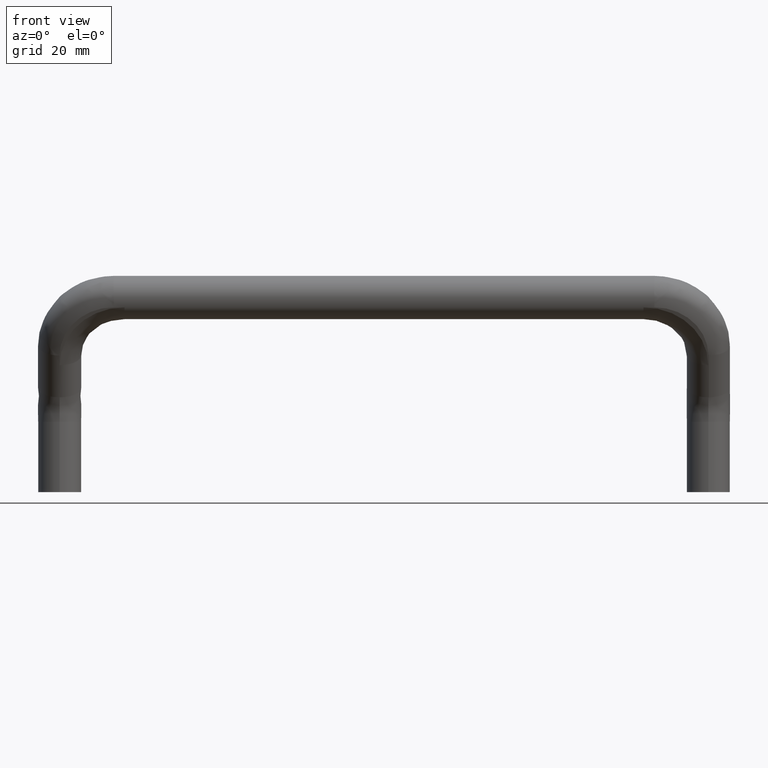
[diagram: clean part render]
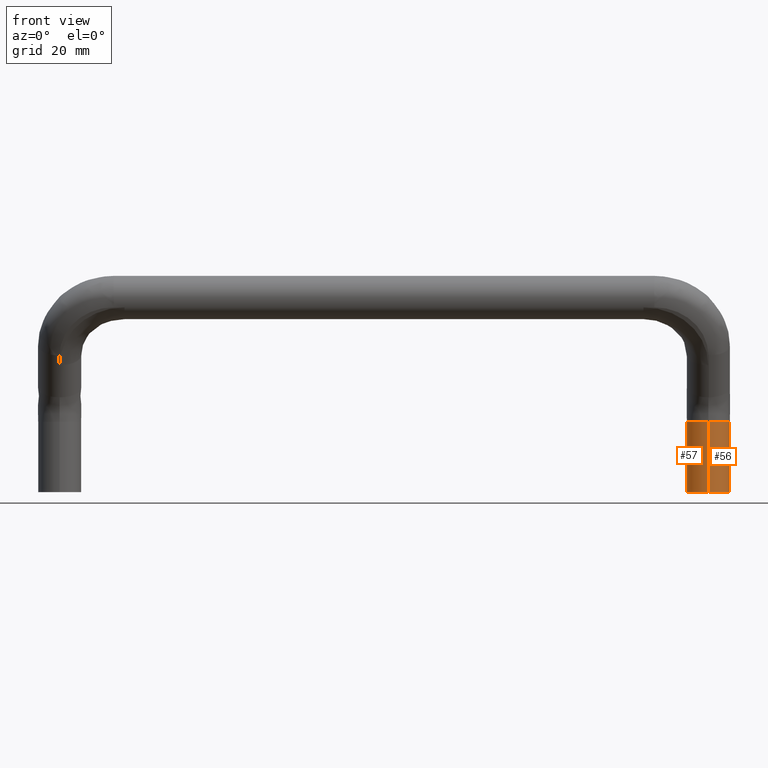
[diagram: same view with one multi-face feature highlighted, each face labeled with its STEP entity id]
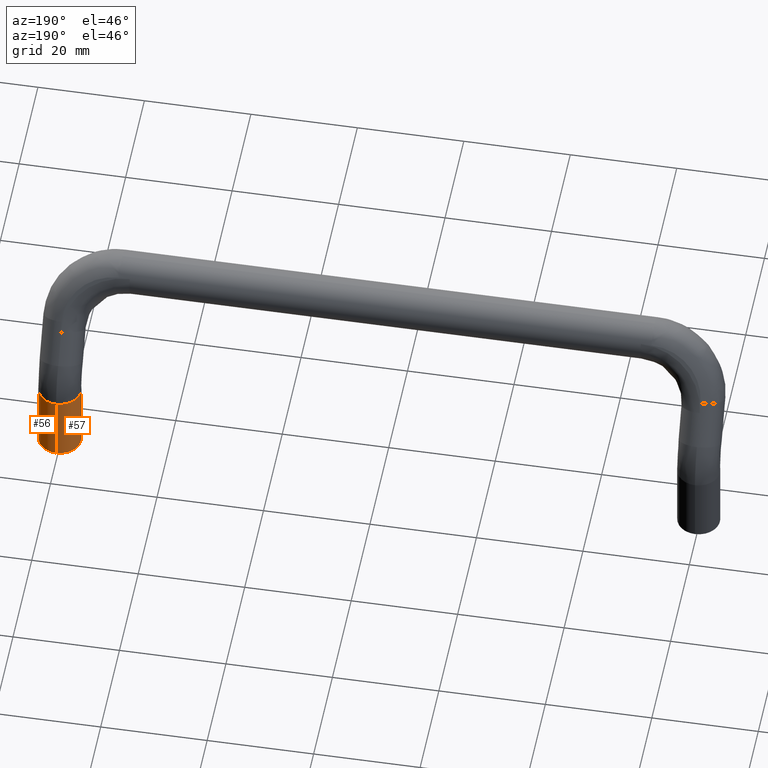
[diagram: same view with one multi-face feature highlighted, each face labeled with its STEP entity id]
A machine part, front view. The highlighted faces form ONE feature: a constant-radius fillet chain: 2 tangent blend faces with common blend radius 4 mm. The faces share edges in the B-rep.
A second angle (auxiliary view) of the same feature is appended — it is thin or edge-on in the first view.
Their STEP definitions:
[1] entity #56 (Cylinder):
#56=ADVANCED_FACE('',(#233),#232,.T.);
#232=CYLINDRICAL_SURFACE('',#603,4.00000000000E+00);
#233=FACE_OUTER_BOUND('',#604,.T.);
#600=CARTESIAN_POINT('',(6.00000000001E+01,9.99999999999E+00,-2.55000000000E+01));
#601=DIRECTION('',(-0.00000000000E+00,2.27382215620E-13,1.00000000000E+00));
#602=DIRECTION('',(0.00000000000E+00,-1.00000000000E+00,2.27382215620E-13));
#603=AXIS2_PLACEMENT_3D('',#600,#601,#602);
#604=EDGE_LOOP('',(#770,#771,#772,#773));
#770=ORIENTED_EDGE('',*,*,#891,.F.);
#771=ORIENTED_EDGE('',*,*,#894,.F.);
#772=ORIENTED_EDGE('',*,*,#841,.F.);
#773=ORIENTED_EDGE('',*,*,#895,.T.);
#841=EDGE_CURVE('',#915,#914,#922,.T.);
#891=EDGE_CURVE('',#1215,#1214,#1262,.T.);
#894=EDGE_CURVE('',#914,#1215,#1280,.T.);
#895=EDGE_CURVE('',#915,#1214,#1286,.T.);
#914=VERTEX_POINT('',#1406);
#915=VERTEX_POINT('',#1407);
#922=CIRCLE('',#1415,4.00000000000E+00);
#1214=VERTEX_POINT('',#1610);
#1215=VERTEX_POINT('',#1611);
#1262=CIRCLE('',#1645,4.00000000000E+00);
#1280=(BOUNDED_CURVE() B_SPLINE_CURVE(1,(#1650,#1651),.UNSPECIFIED.,.F.,.F.) B_SPLINE_CURVE_WITH_KNOTS((2,2),(8.33333343261E-02,9.16666667006E-01),.UNSPECIFIED.) CURVE() GEOMETRIC_REPRESENTATION_ITEM() RATIONAL_B_SPLINE_CURVE((1.00000000000E+00,1.00000000000E+00)) REPRESENTATION_ITEM('') );
#1286=(BOUNDED_CURVE() B_SPLINE_CURVE(1,(#1652,#1653),.UNSPECIFIED.,.F.,.F.) B_SPLINE_CURVE_WITH_KNOTS((2,2),(8.33333333335E-02,9.16666666667E-01),.UNSPECIFIED.) CURVE() GEOMETRIC_REPRESENTATION_ITEM() RATIONAL_B_SPLINE_CURVE((7.50000000000E-01,7.50000000000E-01)) REPRESENTATION_ITEM('') );
#1406=CARTESIAN_POINT('',(6.00000000001E+01,5.99999999999E+00,-3.19999999999E+01));
#1407=CARTESIAN_POINT('',(6.00000000001E+01,1.40000000000E+01,-3.19999999999E+01));
#1412=CARTESIAN_POINT('',(6.00000000001E+01,9.99999999999E+00,-3.19999999999E+01));
#1413=DIRECTION('',(-1.12103877146E-44,5.74651437545E-13,-1.00000000000E+00));
#1414=DIRECTION('',(-0.00000000000E+00,-1.00000000000E+00,-5.74651437545E-13));
#1415=AXIS2_PLACEMENT_3D('',#1412,#1413,#1414);
#1610=CARTESIAN_POINT('',(6.00000000001E+01,1.40000000000E+01,-1.89999999999E+01));
#1611=CARTESIAN_POINT('',(6.00000000001E+01,5.99999999999E+00,-1.89999999999E+01));
#1642=CARTESIAN_POINT('',(6.00000000001E+01,9.99999999999E+00,-1.89999999999E+01));
#1643=DIRECTION('',(-5.60519385730E-45,2.27373675443E-13,1.00000000000E+00));
#1644=DIRECTION('',(-1.22460635382E-16,-1.00000000000E+00,2.27373675443E-13));
#1645=AXIS2_PLACEMENT_3D('',#1642,#1643,#1644);
#1650=CARTESIAN_POINT('',(6.00000000001E+01,5.99999999999E+00,-3.19999999844E+01));
#1651=CARTESIAN_POINT('',(6.00000000001E+01,6.00000000000E+00,-1.89999999946E+01));
#1652=CARTESIAN_POINT('',(6.00000000001E+01,1.40000000000E+01,-3.19999999999E+01));
#1653=CARTESIAN_POINT('',(6.00000000001E+01,1.40000000000E+01,-1.89999999999E+01));
[2] entity #57 (Cylinder):
#57=ADVANCED_FACE('',(#243),#242,.T.);
#242=CYLINDRICAL_SURFACE('',#608,4.00000000000E+00);
#243=FACE_OUTER_BOUND('',#609,.T.);
#605=CARTESIAN_POINT('',(6.00000000001E+01,9.99999999999E+00,-2.55000000000E+01));
#606=DIRECTION('',(-0.00000000000E+00,2.27382215620E-13,1.00000000000E+00));
#607=DIRECTION('',(0.00000000000E+00,-1.00000000000E+00,2.27382215620E-13));
#608=AXIS2_PLACEMENT_3D('',#605,#606,#607);
#609=EDGE_LOOP('',(#774,#775,#776,#777));
#774=ORIENTED_EDGE('',*,*,#840,.F.);
#775=ORIENTED_EDGE('',*,*,#894,.T.);
#776=ORIENTED_EDGE('',*,*,#884,.F.);
#777=ORIENTED_EDGE('',*,*,#895,.F.);
#840=EDGE_CURVE('',#914,#915,#916,.T.);
#884=EDGE_CURVE('',#1214,#1215,#1216,.T.);
#894=EDGE_CURVE('',#914,#1215,#1280,.T.);
#895=EDGE_CURVE('',#915,#1214,#1286,.T.);
#914=VERTEX_POINT('',#1406);
#915=VERTEX_POINT('',#1407);
#916=CIRCLE('',#1411,4.00000000000E+00);
#1214=VERTEX_POINT('',#1610);
#1215=VERTEX_POINT('',#1611);
#1216=CIRCLE('',#1615,4.00000000000E+00);
#1280=(BOUNDED_CURVE() B_SPLINE_CURVE(1,(#1650,#1651),.UNSPECIFIED.,.F.,.F.) B_SPLINE_CURVE_WITH_KNOTS((2,2),(8.33333343261E-02,9.16666667006E-01),.UNSPECIFIED.) CURVE() GEOMETRIC_REPRESENTATION_ITEM() RATIONAL_B_SPLINE_CURVE((1.00000000000E+00,1.00000000000E+00)) REPRESENTATION_ITEM('') );
#1286=(BOUNDED_CURVE() B_SPLINE_CURVE(1,(#1652,#1653),.UNSPECIFIED.,.F.,.F.) B_SPLINE_CURVE_WITH_KNOTS((2,2),(8.33333333335E-02,9.16666666667E-01),.UNSPECIFIED.) CURVE() GEOMETRIC_REPRESENTATION_ITEM() RATIONAL_B_SPLINE_CURVE((7.50000000000E-01,7.50000000000E-01)) REPRESENTATION_ITEM('') );
#1406=CARTESIAN_POINT('',(6.00000000001E+01,5.99999999999E+00,-3.19999999999E+01));
#1407=CARTESIAN_POINT('',(6.00000000001E+01,1.40000000000E+01,-3.19999999999E+01));
#1408=CARTESIAN_POINT('',(6.00000000001E+01,9.99999999999E+00,-3.19999999999E+01));
#1409=DIRECTION('',(-1.12103877146E-44,5.74651437545E-13,-1.00000000000E+00));
#1410=DIRECTION('',(-0.00000000000E+00,-1.00000000000E+00,-5.74651437545E-13));
#1411=AXIS2_PLACEMENT_3D('',#1408,#1409,#1410);
#1610=CARTESIAN_POINT('',(6.00000000001E+01,1.40000000000E+01,-1.89999999999E+01));
#1611=CARTESIAN_POINT('',(6.00000000001E+01,5.99999999999E+00,-1.89999999999E+01));
#1612=CARTESIAN_POINT('',(6.00000000001E+01,9.99999999999E+00,-1.89999999999E+01));
#1613=DIRECTION('',(-5.60519385730E-45,2.27373675443E-13,1.00000000000E+00));
#1614=DIRECTION('',(-1.22460635382E-16,-1.00000000000E+00,2.27373675443E-13));
#1615=AXIS2_PLACEMENT_3D('',#1612,#1613,#1614);
#1650=CARTESIAN_POINT('',(6.00000000001E+01,5.99999999999E+00,-3.19999999844E+01));
#1651=CARTESIAN_POINT('',(6.00000000001E+01,6.00000000000E+00,-1.89999999946E+01));
#1652=CARTESIAN_POINT('',(6.00000000001E+01,1.40000000000E+01,-3.19999999999E+01));
#1653=CARTESIAN_POINT('',(6.00000000001E+01,1.40000000000E+01,-1.89999999999E+01));